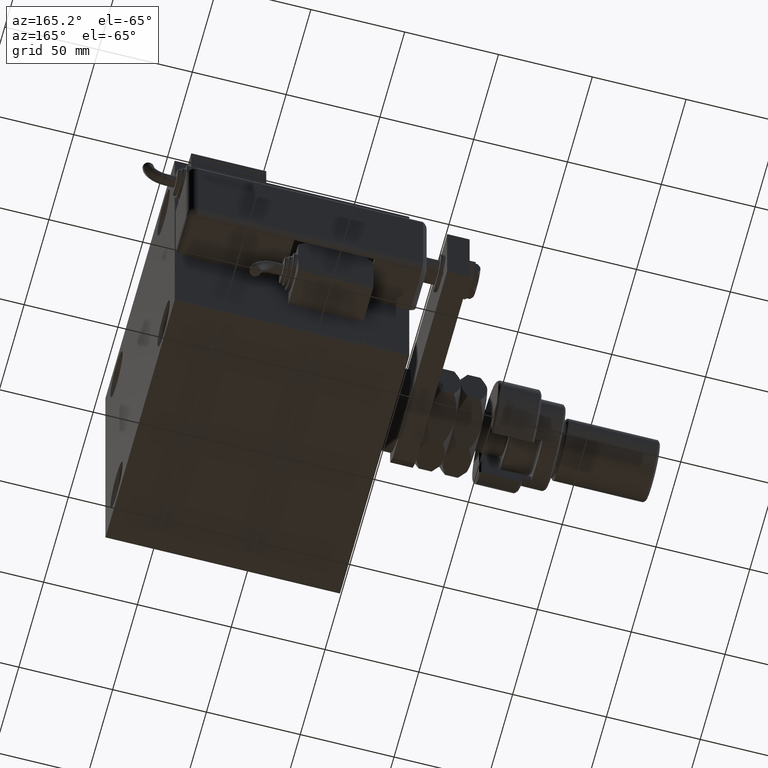
[diagram: clean part render]
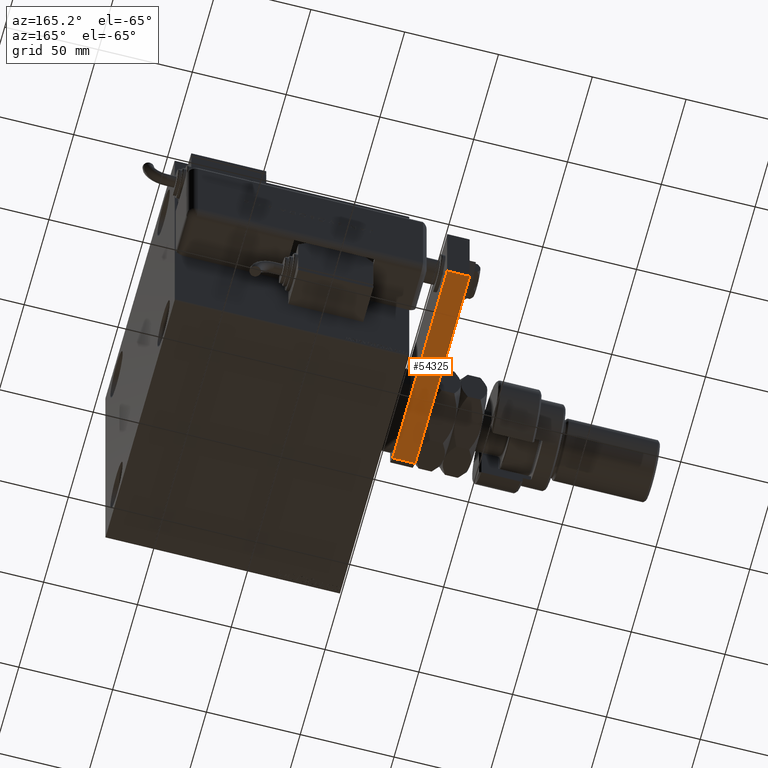
[diagram: same view with one face highlighted and labeled with its STEP entity id]
A machine part, auxiliary view. The second image highlights one B-rep face of the part: STEP entity #54325.
In plain terms, the highlighted planar face has unit normal (0, -0, 1).
Its self-contained STEP definition (entity closure, byte-faithful):
#1858 = DIRECTION ( 'NONE',  ( -9.050731179009427836E-17, 1.000000000000000000, 0.000000000000000000 ) ) ;
#1956 = LINE ( 'NONE', #49227, #62343 ) ;
#8252 = VECTOR ( 'NONE', #20399, 1000.000000000000000 ) ;
#9536 = VECTOR ( 'NONE', #16279, 1000.000000000000000 ) ;
#12472 = CARTESIAN_POINT ( 'NONE',  ( 22.50000000000001066, 0.000000000000000000, 0.000000000000000000 ) ) ;
#12669 = DIRECTION ( 'NONE',  ( -1.000000000000000000, -9.050731179009426604E-17, 0.000000000000000000 ) ) ;
#14521 = ORIENTED_EDGE ( 'NONE', *, *, #58289, .T. ) ;
#15393 = CARTESIAN_POINT ( 'NONE',  ( 22.50000000000000000, 115.0000000000000000, 12.00000000000000000 ) ) ;
#16279 = DIRECTION ( 'NONE',  ( -9.050731179009427836E-17, 1.000000000000000000, 0.000000000000000000 ) ) ;
#16334 = VECTOR ( 'NONE', #1858, 1000.000000000000000 ) ;
#17557 = VERTEX_POINT ( 'NONE', #57261 ) ;
#20399 = DIRECTION ( 'NONE',  ( -0.000000000000000000, -0.000000000000000000, -1.000000000000000000 ) ) ;
#21557 = DIRECTION ( 'NONE',  ( 9.050731179009426604E-17, -1.000000000000000000, 0.000000000000000000 ) ) ;
#21852 = LINE ( 'NONE', #55141, #16334 ) ;
#22228 = VERTEX_POINT ( 'NONE', #37108 ) ;
#22577 = AXIS2_PLACEMENT_3D ( 'NONE', #40890, #12669, #21557 ) ;
#23254 = VERTEX_POINT ( 'NONE', #15393 ) ;
#25320 = VERTEX_POINT ( 'NONE', #38331 ) ;
#27803 = ORIENTED_EDGE ( 'NONE', *, *, #46302, .F. ) ;
#31389 = PLANE ( 'NONE',  #22577 ) ;
#35387 = ORIENTED_EDGE ( 'NONE', *, *, #61403, .T. ) ;
#37108 = CARTESIAN_POINT ( 'NONE',  ( 22.50000000000001066, 5.000000000000003553, 0.000000000000000000 ) ) ;
#38331 = CARTESIAN_POINT ( 'NONE',  ( 22.50000000000000000, 115.0000000000000000, 0.000000000000000000 ) ) ;
#40051 = CARTESIAN_POINT ( 'NONE',  ( 22.50000000000000000, 115.0000000000000000, 12.00000000000000000 ) ) ;
#40890 = CARTESIAN_POINT ( 'NONE',  ( 22.50000000000001066, 0.000000000000000000, 12.00000000000000000 ) ) ;
#42036 = EDGE_CURVE ( 'NONE', #23254, #25320, #48948, .T. ) ;
#42104 = EDGE_LOOP ( 'NONE', ( #27803, #35387, #14521, #55703 ) ) ;
#46302 = EDGE_CURVE ( 'NONE', #17557, #23254, #21852, .T. ) ;
#48948 = LINE ( 'NONE', #40051, #8252 ) ;
#49227 = CARTESIAN_POINT ( 'NONE',  ( 22.50000000000001066, 5.000000000000003553, 12.00000000000000000 ) ) ;
#54325 = ADVANCED_FACE ( 'NONE', ( #59610 ), #31389, .F. ) ;
#55141 = CARTESIAN_POINT ( 'NONE',  ( 22.50000000000001066, 0.000000000000000000, 12.00000000000000000 ) ) ;
#55703 = ORIENTED_EDGE ( 'NONE', *, *, #42036, .F. ) ;
#57261 = CARTESIAN_POINT ( 'NONE',  ( 22.50000000000001066, 5.000000000000003553, 12.00000000000000000 ) ) ;
#58289 = EDGE_CURVE ( 'NONE', #22228, #25320, #59722, .T. ) ;
#59610 = FACE_OUTER_BOUND ( 'NONE', #42104, .T. ) ;
#59722 = LINE ( 'NONE', #12472, #9536 ) ;
#60012 = DIRECTION ( 'NONE',  ( 0.000000000000000000, 0.000000000000000000, -1.000000000000000000 ) ) ;
#61403 = EDGE_CURVE ( 'NONE', #17557, #22228, #1956, .T. ) ;
#62343 = VECTOR ( 'NONE', #60012, 1000.000000000000000 ) ;